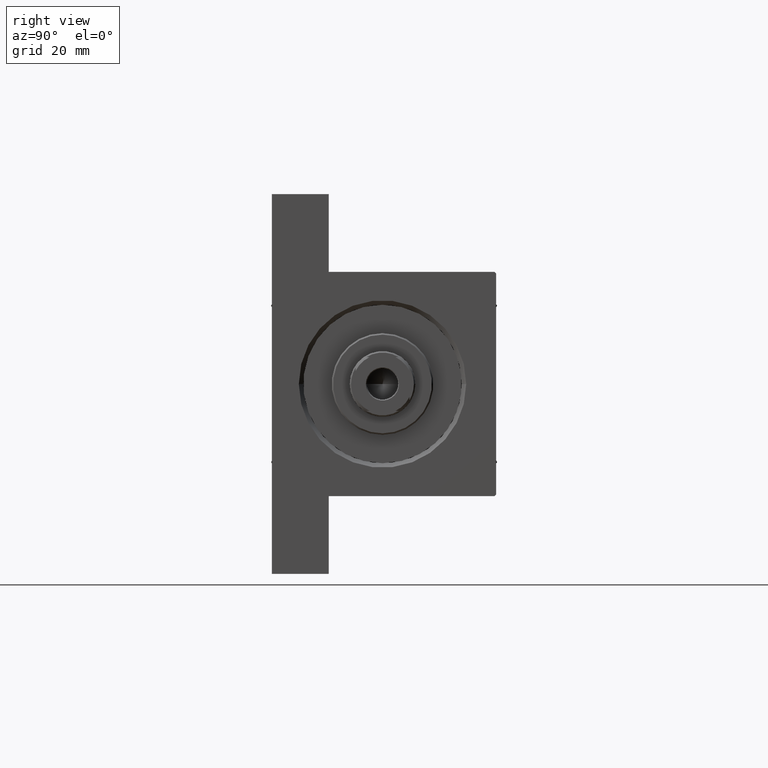
[diagram: clean part render]
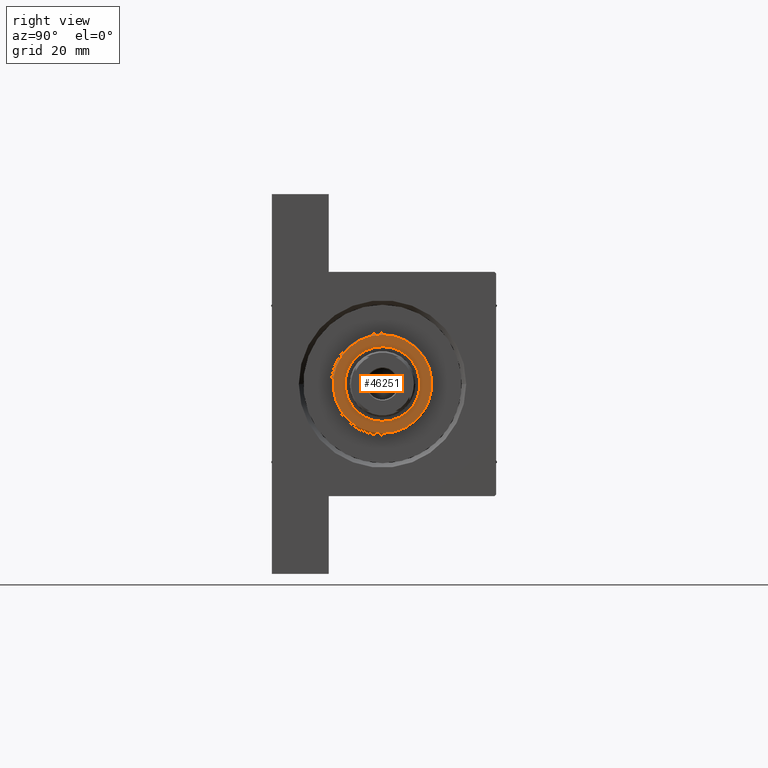
[diagram: same view with one face highlighted and labeled with its STEP entity id]
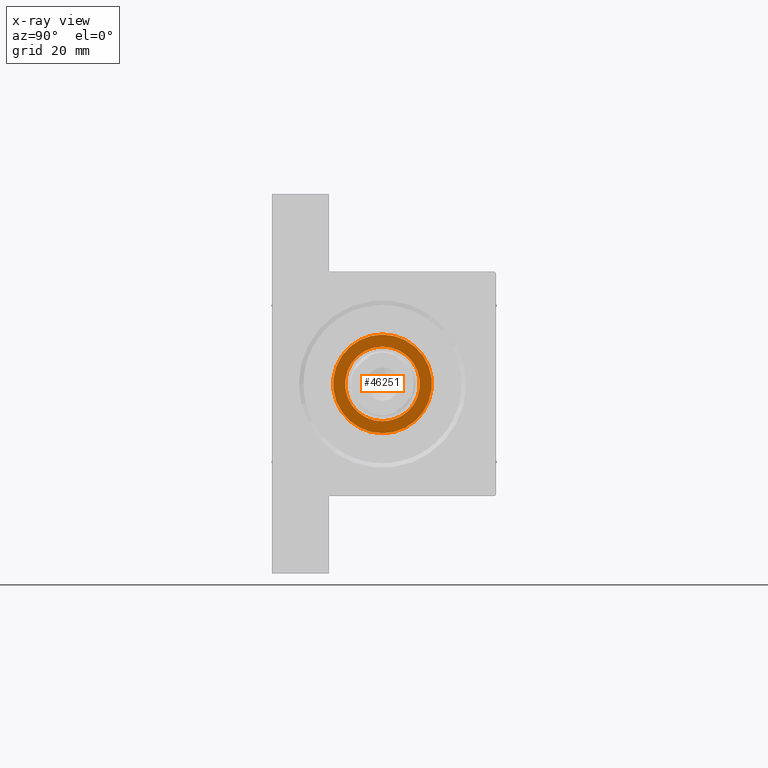
[diagram: x-ray of the same camera — body ghosted, the highlighted face saturated]
A machine part, right view. The second image highlights one B-rep face of the part: STEP entity #46251.
The next image is the same camera in x-ray: the body ghosted, the highlighted face saturated — about 0% of this face is hidden behind the body in this view.
In plain terms, the highlighted planar face has unit normal (1, 0, 0).
Its self-contained STEP definition (entity closure, byte-faithful):
#138 = AXIS2_PLACEMENT_3D ( 'NONE', #24193, #2306, #34799 ) ;
#746 = CARTESIAN_POINT ( 'NONE',  ( -12.50000000000000000, 1.530808498934191521E-15, 37.69999999999999574 ) ) ;
#1252 = CARTESIAN_POINT ( 'NONE',  ( 16.50000000000000000, 2.051283388571816887E-15, 37.69999999999999574 ) ) ;
#2306 = DIRECTION ( 'NONE',  ( 0.000000000000000000, 0.000000000000000000, 1.000000000000000000 ) ) ;
#3213 = CARTESIAN_POINT ( 'NONE',  ( -16.50000000000000000, 0.000000000000000000, 37.69999999999999574 ) ) ;
#4236 = CARTESIAN_POINT ( 'NONE',  ( 0.000000000000000000, 0.000000000000000000, 37.69999999999999574 ) ) ;
#4403 = ORIENTED_EDGE ( 'NONE', *, *, #6176, .T. ) ;
#6176 = EDGE_CURVE ( 'NONE', #44288, #19949, #31473, .T. ) ;
#6999 = AXIS2_PLACEMENT_3D ( 'NONE', #8316, #19844, #16244 ) ;
#7787 = CIRCLE ( 'NONE', #6999, 16.50000000000000000 ) ;
#8316 = CARTESIAN_POINT ( 'NONE',  ( 0.000000000000000000, 0.000000000000000000, 37.69999999999999574 ) ) ;
#8630 = CARTESIAN_POINT ( 'NONE',  ( 12.50000000000000000, 0.000000000000000000, 37.69999999999999574 ) ) ;
#9682 = DIRECTION ( 'NONE',  ( 0.000000000000000000, 0.000000000000000000, 1.000000000000000000 ) ) ;
#10328 = EDGE_LOOP ( 'NONE', ( #4403, #22595 ) ) ;
#11448 = FACE_BOUND ( 'NONE', #31716, .T. ) ;
#11692 = DIRECTION ( 'NONE',  ( 1.000000000000000000, 0.000000000000000000, -0.000000000000000000 ) ) ;
#11937 = PLANE ( 'NONE',  #46197 ) ;
#15402 = EDGE_CURVE ( 'NONE', #37521, #27150, #20889, .T. ) ;
#16046 = ORIENTED_EDGE ( 'NONE', *, *, #15402, .F. ) ;
#16080 = CARTESIAN_POINT ( 'NONE',  ( 0.000000000000000000, 0.000000000000000000, 37.69999999999999574 ) ) ;
#16244 = DIRECTION ( 'NONE',  ( 1.000000000000000000, 0.000000000000000000, 0.000000000000000000 ) ) ;
#16332 = CIRCLE ( 'NONE', #20960, 12.50000000000000000 ) ;
#16659 = CARTESIAN_POINT ( 'NONE',  ( 0.000000000000000000, 0.000000000000000000, 37.69999999999999574 ) ) ;
#16812 = EDGE_CURVE ( 'NONE', #27150, #37521, #16332, .T. ) ;
#18920 = DIRECTION ( 'NONE',  ( 0.000000000000000000, 0.000000000000000000, 1.000000000000000000 ) ) ;
#19844 = DIRECTION ( 'NONE',  ( 0.000000000000000000, 0.000000000000000000, 1.000000000000000000 ) ) ;
#19949 = VERTEX_POINT ( 'NONE', #1252 ) ;
#20889 = CIRCLE ( 'NONE', #138, 12.50000000000000000 ) ;
#20960 = AXIS2_PLACEMENT_3D ( 'NONE', #16080, #34127, #42272 ) ;
#22595 = ORIENTED_EDGE ( 'NONE', *, *, #45581, .T. ) ;
#24193 = CARTESIAN_POINT ( 'NONE',  ( 0.000000000000000000, 0.000000000000000000, 37.69999999999999574 ) ) ;
#24329 = DIRECTION ( 'NONE',  ( 1.000000000000000000, 0.000000000000000000, 0.000000000000000000 ) ) ;
#25256 = ORIENTED_EDGE ( 'NONE', *, *, #16812, .F. ) ;
#27150 = VERTEX_POINT ( 'NONE', #746 ) ;
#31473 = CIRCLE ( 'NONE', #45290, 16.50000000000000000 ) ;
#31716 = EDGE_LOOP ( 'NONE', ( #16046, #25256 ) ) ;
#34127 = DIRECTION ( 'NONE',  ( 0.000000000000000000, 0.000000000000000000, 1.000000000000000000 ) ) ;
#34799 = DIRECTION ( 'NONE',  ( 1.000000000000000000, 0.000000000000000000, 0.000000000000000000 ) ) ;
#37521 = VERTEX_POINT ( 'NONE', #8630 ) ;
#42272 = DIRECTION ( 'NONE',  ( 1.000000000000000000, 0.000000000000000000, 0.000000000000000000 ) ) ;
#44288 = VERTEX_POINT ( 'NONE', #3213 ) ;
#44629 = FACE_OUTER_BOUND ( 'NONE', #10328, .T. ) ;
#45290 = AXIS2_PLACEMENT_3D ( 'NONE', #16659, #9682, #24329 ) ;
#45581 = EDGE_CURVE ( 'NONE', #19949, #44288, #7787, .T. ) ;
#46197 = AXIS2_PLACEMENT_3D ( 'NONE', #4236, #18920, #11692 ) ;
#46251 = ADVANCED_FACE ( 'NONE', ( #11448, #44629 ), #11937, .T. ) ;